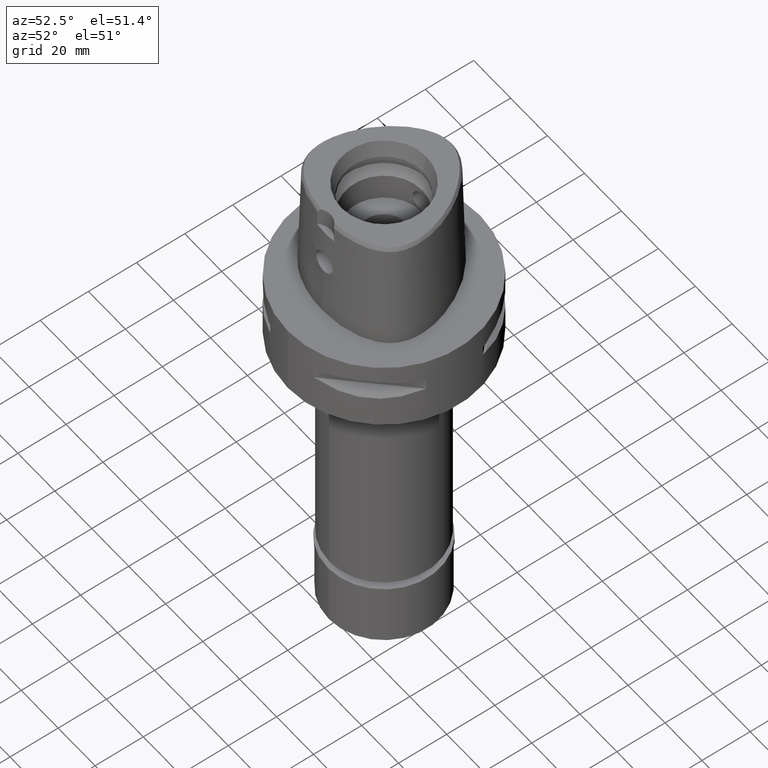
[diagram: clean part render]
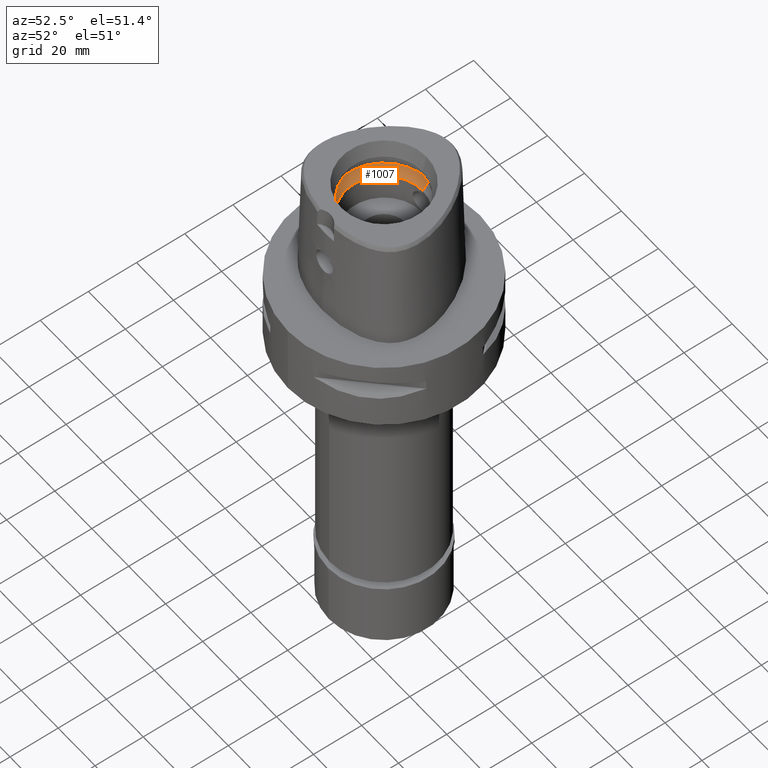
[diagram: same view with one face highlighted and labeled with its STEP entity id]
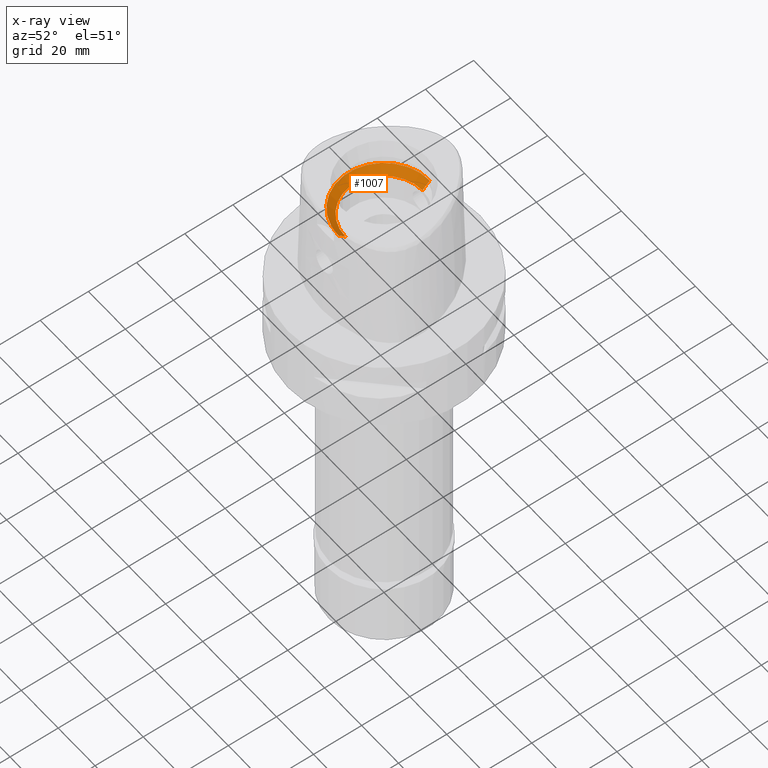
[diagram: x-ray of the same camera — body ghosted, the highlighted face saturated]
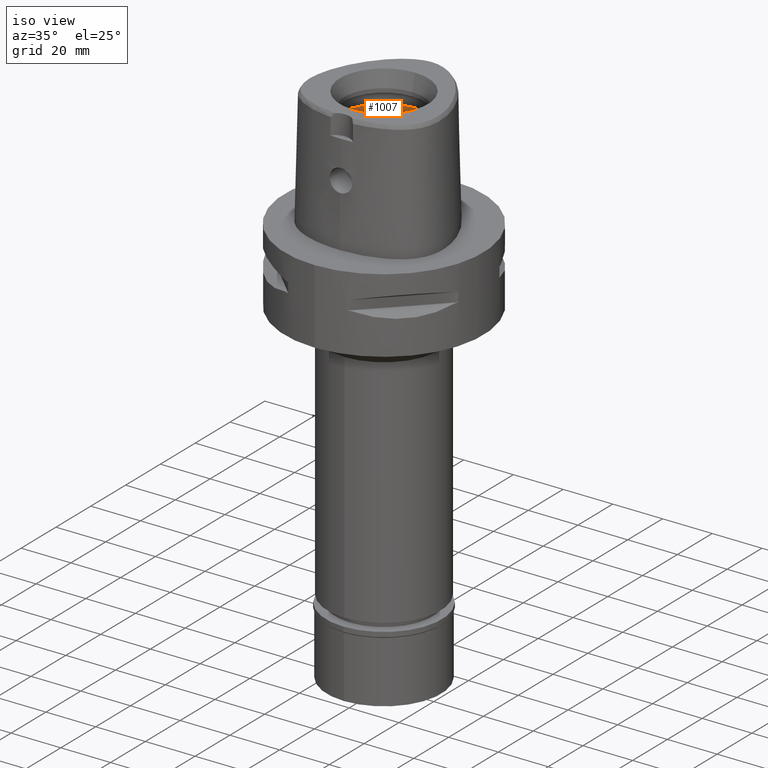
[diagram: same view with one face highlighted and labeled with its STEP entity id]
A machine part, auxiliary view. The second image highlights one B-rep face of the part: STEP entity #1007.
The next image is the same camera in x-ray: the body ghosted, the highlighted face saturated — about 0% of this face is hidden behind the body in this view.
A second angle (iso view) of the same face is appended — the face is thin or edge-on in the first view.
In plain terms, the highlighted conical surface has half-angle 45 deg.
Its self-contained STEP definition (entity closure, byte-faithful):
#47 = CARTESIAN_POINT ( 'NONE',  ( 0.0000000000000000000, 16.00000000000000000, 31.50000000000000000 ) ) ;
#129 = EDGE_LOOP ( 'NONE', ( #2096, #420, #1605, #481 ) ) ;
#221 = DIRECTION ( 'NONE',  ( 0.0000000000000000000, 0.0000000000000000000, 1.000000000000000000 ) ) ;
#354 = AXIS2_PLACEMENT_3D ( 'NONE', #3748, #221, #4459 ) ;
#420 = ORIENTED_EDGE ( 'NONE', *, *, #1618, .T. ) ;
#481 = ORIENTED_EDGE ( 'NONE', *, *, #2724, .F. ) ;
#558 = AXIS2_PLACEMENT_3D ( 'NONE', #2639, #4210, #1883 ) ;
#613 = DIRECTION ( 'NONE',  ( 0.0000000000000000000, 1.000000000000000000, 0.0000000000000000000 ) ) ;
#710 = VERTEX_POINT ( 'NONE', #47 ) ;
#899 = CARTESIAN_POINT ( 'NONE',  ( 0.0000000000000000000, 16.00000000000000000, 31.50000000000000000 ) ) ;
#1007 = ADVANCED_FACE ( 'NONE', ( #2195 ), #1539, .F. ) ;
#1120 = CARTESIAN_POINT ( 'NONE',  ( 0.0000000000000000000, -16.00000000000000000, 31.50000000000000000 ) ) ;
#1378 = AXIS2_PLACEMENT_3D ( 'NONE', #3002, #4144, #613 ) ;
#1539 = CONICAL_SURFACE ( 'NONE', #354, 17.50000000000000000, 0.7853981633972997312 ) ;
#1605 = ORIENTED_EDGE ( 'NONE', *, *, #4333, .F. ) ;
#1618 = EDGE_CURVE ( 'NONE', #710, #2358, #1662, .T. ) ;
#1662 = LINE ( 'NONE', #899, #4474 ) ;
#1672 = CARTESIAN_POINT ( 'NONE',  ( 0.0000000000000000000, -16.00000000000000000, 31.50000000000000000 ) ) ;
#1883 = DIRECTION ( 'NONE',  ( 0.0000000000000000000, -1.000000000000000000, 0.0000000000000000000 ) ) ;
#1953 = EDGE_CURVE ( 'NONE', #710, #4158, #3309, .T. ) ;
#2035 = DIRECTION ( 'NONE',  ( 0.0000000000000000000, 0.7071067811865474617, 0.7071067811865474617 ) ) ;
#2096 = ORIENTED_EDGE ( 'NONE', *, *, #1953, .F. ) ;
#2195 = FACE_OUTER_BOUND ( 'NONE', #129, .T. ) ;
#2358 = VERTEX_POINT ( 'NONE', #4081 ) ;
#2639 = CARTESIAN_POINT ( 'NONE',  ( 0.0000000000000000000, 0.0000000000000000000, 34.50000000000000000 ) ) ;
#2724 = EDGE_CURVE ( 'NONE', #4158, #4538, #4215, .T. ) ;
#2888 = VECTOR ( 'NONE', #4706, 1000.000000000000114 ) ;
#3002 = CARTESIAN_POINT ( 'NONE',  ( 0.0000000000000000000, 0.0000000000000000000, 31.50000000000000000 ) ) ;
#3032 = CIRCLE ( 'NONE', #558, 19.00000000000000000 ) ;
#3309 = CIRCLE ( 'NONE', #1378, 16.00000000000000000 ) ;
#3748 = CARTESIAN_POINT ( 'NONE',  ( 0.0000000000000000000, 0.0000000000000000000, 33.00000000000000000 ) ) ;
#4012 = CARTESIAN_POINT ( 'NONE',  ( 0.0000000000000000000, -19.00000000000000000, 34.50000000000000000 ) ) ;
#4081 = CARTESIAN_POINT ( 'NONE',  ( 0.0000000000000000000, 19.00000000000000000, 34.50000000000000000 ) ) ;
#4144 = DIRECTION ( 'NONE',  ( 0.0000000000000000000, 0.0000000000000000000, 1.000000000000000000 ) ) ;
#4158 = VERTEX_POINT ( 'NONE', #1672 ) ;
#4210 = DIRECTION ( 'NONE',  ( 0.0000000000000000000, 0.0000000000000000000, -1.000000000000000000 ) ) ;
#4215 = LINE ( 'NONE', #1120, #2888 ) ;
#4333 = EDGE_CURVE ( 'NONE', #4538, #2358, #3032, .T. ) ;
#4459 = DIRECTION ( 'NONE',  ( 0.0000000000000000000, 1.000000000000000000, 0.0000000000000000000 ) ) ;
#4474 = VECTOR ( 'NONE', #2035, 1000.000000000000114 ) ;
#4538 = VERTEX_POINT ( 'NONE', #4012 ) ;
#4706 = DIRECTION ( 'NONE',  ( 0.0000000000000000000, -0.7071067811865474617, 0.7071067811865474617 ) ) ;